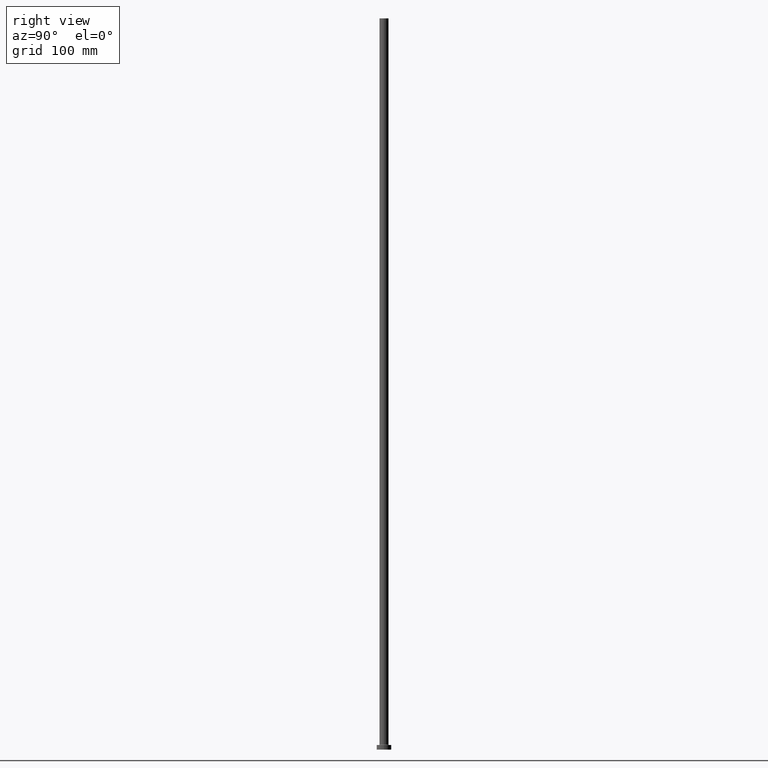
[diagram: clean part render]
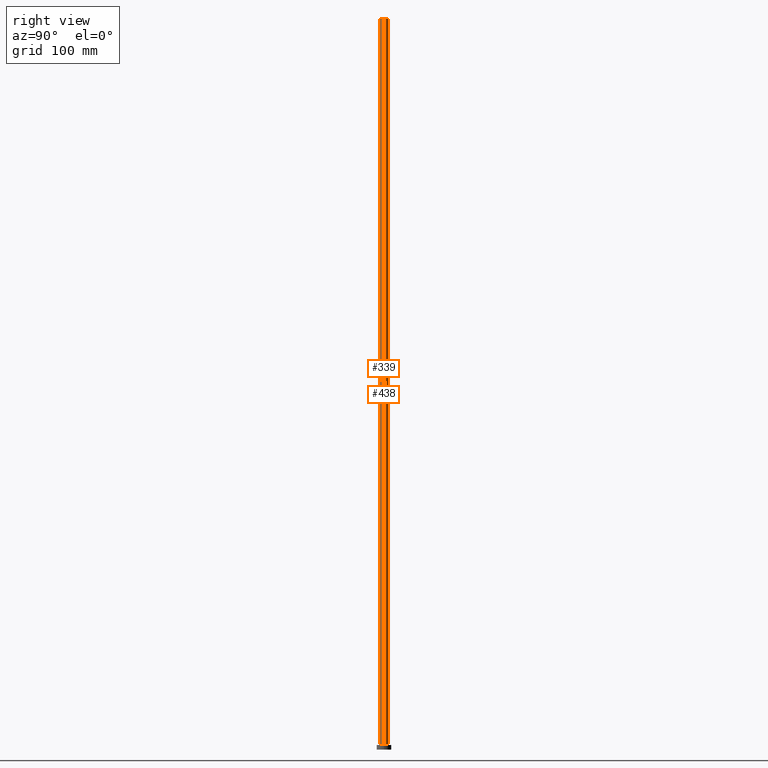
[diagram: same view with one multi-face feature highlighted, each face labeled with its STEP entity id]
A machine part, right view. The highlighted faces form ONE feature: a constant-radius fillet chain: 2 tangent blend faces with common blend radius 5 mm. The faces share edges in the B-rep.
Their STEP definitions:
[1] entity #438 (Cylinder):
#15 = CIRCLE ( 'NONE', #274, 5.000000000000000000 ) ;
#17 = CARTESIAN_POINT ( 'NONE',  ( -5.000000000000000000, 0.000000000000000000, 5.499999999999949374 ) ) ;
#19 = CARTESIAN_POINT ( 'NONE',  ( -5.000000000000000000, 0.000000000000000000, 800.0000000000000000 ) ) ;
#22 = EDGE_CURVE ( 'NONE', #454, #36, #15, .T. ) ;
#36 = VERTEX_POINT ( 'NONE', #377 ) ;
#64 = DIRECTION ( 'NONE',  ( -1.000000000000000000, 0.000000000000000000, 0.000000000000000000 ) ) ;
#118 = DIRECTION ( 'NONE',  ( -0.000000000000000000, -0.000000000000000000, -1.000000000000000000 ) ) ;
#122 = LINE ( 'NONE', #19, #231 ) ;
#133 = DIRECTION ( 'NONE',  ( 0.000000000000000000, 0.000000000000000000, 1.000000000000000000 ) ) ;
#148 = ORIENTED_EDGE ( 'NONE', *, *, #22, .F. ) ;
#160 = EDGE_CURVE ( 'NONE', #454, #352, #409, .T. ) ;
#168 = ORIENTED_EDGE ( 'NONE', *, *, #434, .F. ) ;
#189 = DIRECTION ( 'NONE',  ( -0.000000000000000000, -0.000000000000000000, -1.000000000000000000 ) ) ;
#231 = VECTOR ( 'NONE', #118, 1000.000000000000000 ) ;
#232 = VERTEX_POINT ( 'NONE', #17 ) ;
#235 = ORIENTED_EDGE ( 'NONE', *, *, #160, .T. ) ;
#236 = DIRECTION ( 'NONE',  ( 1.000000000000000000, 0.000000000000000000, 0.000000000000000000 ) ) ;
#246 = VECTOR ( 'NONE', #255, 1000.000000000000000 ) ;
#255 = DIRECTION ( 'NONE',  ( -0.000000000000000000, -0.000000000000000000, -1.000000000000000000 ) ) ;
#257 = CARTESIAN_POINT ( 'NONE',  ( 0.000000000000000000, 0.000000000000000000, 800.0000000000000000 ) ) ;
#265 = CARTESIAN_POINT ( 'NONE',  ( 5.000000000000000000, 6.123233995736766282E-16, 800.0000000000000000 ) ) ;
#274 = AXIS2_PLACEMENT_3D ( 'NONE', #404, #329, #289 ) ;
#280 = EDGE_CURVE ( 'NONE', #352, #232, #376, .T. ) ;
#289 = DIRECTION ( 'NONE',  ( 1.000000000000000000, 0.000000000000000000, 0.000000000000000000 ) ) ;
#295 = CYLINDRICAL_SURFACE ( 'NONE', #421, 5.000000000000000000 ) ;
#302 = CARTESIAN_POINT ( 'NONE',  ( 5.000000000000000000, 6.123233995736766282E-16, 800.0000000000000000 ) ) ;
#309 = CARTESIAN_POINT ( 'NONE',  ( 0.000000000000000000, 0.000000000000000000, 5.499999999999949374 ) ) ;
#329 = DIRECTION ( 'NONE',  ( 0.000000000000000000, 0.000000000000000000, 1.000000000000000000 ) ) ;
#352 = VERTEX_POINT ( 'NONE', #429 ) ;
#376 = CIRCLE ( 'NONE', #442, 5.000000000000000000 ) ;
#377 = CARTESIAN_POINT ( 'NONE',  ( -5.000000000000000000, 0.000000000000000000, 800.0000000000000000 ) ) ;
#404 = CARTESIAN_POINT ( 'NONE',  ( 0.000000000000000000, 0.000000000000000000, 800.0000000000000000 ) ) ;
#409 = LINE ( 'NONE', #265, #246 ) ;
#415 = FACE_OUTER_BOUND ( 'NONE', #445, .T. ) ;
#421 = AXIS2_PLACEMENT_3D ( 'NONE', #257, #189, #64 ) ;
#429 = CARTESIAN_POINT ( 'NONE',  ( 5.000000000000000000, 6.123233995736766282E-16, 5.499999999999949374 ) ) ;
#434 = EDGE_CURVE ( 'NONE', #36, #232, #122, .T. ) ;
#438 = ADVANCED_FACE ( 'NONE', ( #415 ), #295, .T. ) ;
#442 = AXIS2_PLACEMENT_3D ( 'NONE', #309, #133, #236 ) ;
#445 = EDGE_LOOP ( 'NONE', ( #148, #235, #448, #168 ) ) ;
#448 = ORIENTED_EDGE ( 'NONE', *, *, #280, .T. ) ;
#454 = VERTEX_POINT ( 'NONE', #302 ) ;
[2] entity #339 (Cylinder):
#4 = EDGE_CURVE ( 'NONE', #36, #454, #199, .T. ) ;
#7 = DIRECTION ( 'NONE',  ( -1.000000000000000000, 0.000000000000000000, 0.000000000000000000 ) ) ;
#17 = CARTESIAN_POINT ( 'NONE',  ( -5.000000000000000000, 0.000000000000000000, 5.499999999999949374 ) ) ;
#19 = CARTESIAN_POINT ( 'NONE',  ( -5.000000000000000000, 0.000000000000000000, 800.0000000000000000 ) ) ;
#24 = AXIS2_PLACEMENT_3D ( 'NONE', #256, #368, #369 ) ;
#36 = VERTEX_POINT ( 'NONE', #377 ) ;
#78 = CYLINDRICAL_SURFACE ( 'NONE', #124, 5.000000000000000000 ) ;
#105 = CIRCLE ( 'NONE', #217, 5.000000000000000000 ) ;
#118 = DIRECTION ( 'NONE',  ( -0.000000000000000000, -0.000000000000000000, -1.000000000000000000 ) ) ;
#122 = LINE ( 'NONE', #19, #231 ) ;
#124 = AXIS2_PLACEMENT_3D ( 'NONE', #363, #361, #7 ) ;
#136 = EDGE_CURVE ( 'NONE', #232, #352, #105, .T. ) ;
#137 = ORIENTED_EDGE ( 'NONE', *, *, #434, .T. ) ;
#160 = EDGE_CURVE ( 'NONE', #454, #352, #409, .T. ) ;
#173 = FACE_OUTER_BOUND ( 'NONE', #427, .T. ) ;
#175 = ORIENTED_EDGE ( 'NONE', *, *, #160, .F. ) ;
#188 = CARTESIAN_POINT ( 'NONE',  ( 0.000000000000000000, 0.000000000000000000, 5.499999999999949374 ) ) ;
#199 = CIRCLE ( 'NONE', #24, 5.000000000000000000 ) ;
#217 = AXIS2_PLACEMENT_3D ( 'NONE', #188, #370, #218 ) ;
#218 = DIRECTION ( 'NONE',  ( 1.000000000000000000, 0.000000000000000000, 0.000000000000000000 ) ) ;
#231 = VECTOR ( 'NONE', #118, 1000.000000000000000 ) ;
#232 = VERTEX_POINT ( 'NONE', #17 ) ;
#246 = VECTOR ( 'NONE', #255, 1000.000000000000000 ) ;
#255 = DIRECTION ( 'NONE',  ( -0.000000000000000000, -0.000000000000000000, -1.000000000000000000 ) ) ;
#256 = CARTESIAN_POINT ( 'NONE',  ( 0.000000000000000000, 0.000000000000000000, 800.0000000000000000 ) ) ;
#265 = CARTESIAN_POINT ( 'NONE',  ( 5.000000000000000000, 6.123233995736766282E-16, 800.0000000000000000 ) ) ;
#271 = ORIENTED_EDGE ( 'NONE', *, *, #136, .T. ) ;
#302 = CARTESIAN_POINT ( 'NONE',  ( 5.000000000000000000, 6.123233995736766282E-16, 800.0000000000000000 ) ) ;
#305 = ORIENTED_EDGE ( 'NONE', *, *, #4, .F. ) ;
#339 = ADVANCED_FACE ( 'NONE', ( #173 ), #78, .T. ) ;
#352 = VERTEX_POINT ( 'NONE', #429 ) ;
#361 = DIRECTION ( 'NONE',  ( -0.000000000000000000, -0.000000000000000000, -1.000000000000000000 ) ) ;
#363 = CARTESIAN_POINT ( 'NONE',  ( 0.000000000000000000, 0.000000000000000000, 800.0000000000000000 ) ) ;
#368 = DIRECTION ( 'NONE',  ( 0.000000000000000000, 0.000000000000000000, 1.000000000000000000 ) ) ;
#369 = DIRECTION ( 'NONE',  ( 1.000000000000000000, 0.000000000000000000, 0.000000000000000000 ) ) ;
#370 = DIRECTION ( 'NONE',  ( 0.000000000000000000, 0.000000000000000000, 1.000000000000000000 ) ) ;
#377 = CARTESIAN_POINT ( 'NONE',  ( -5.000000000000000000, 0.000000000000000000, 800.0000000000000000 ) ) ;
#409 = LINE ( 'NONE', #265, #246 ) ;
#427 = EDGE_LOOP ( 'NONE', ( #175, #305, #137, #271 ) ) ;
#429 = CARTESIAN_POINT ( 'NONE',  ( 5.000000000000000000, 6.123233995736766282E-16, 5.499999999999949374 ) ) ;
#434 = EDGE_CURVE ( 'NONE', #36, #232, #122, .T. ) ;
#454 = VERTEX_POINT ( 'NONE', #302 ) ;